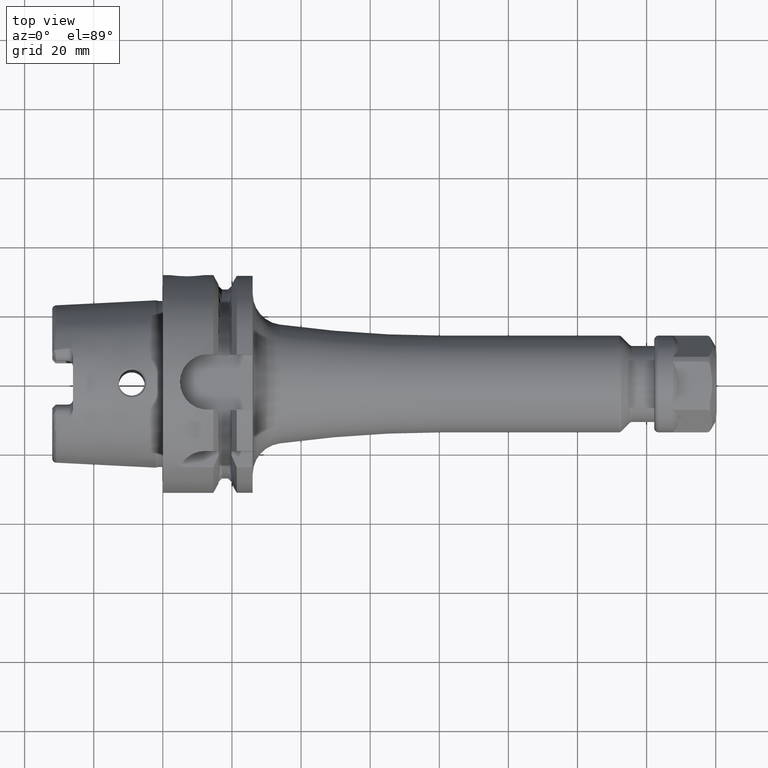
[diagram: clean part render]
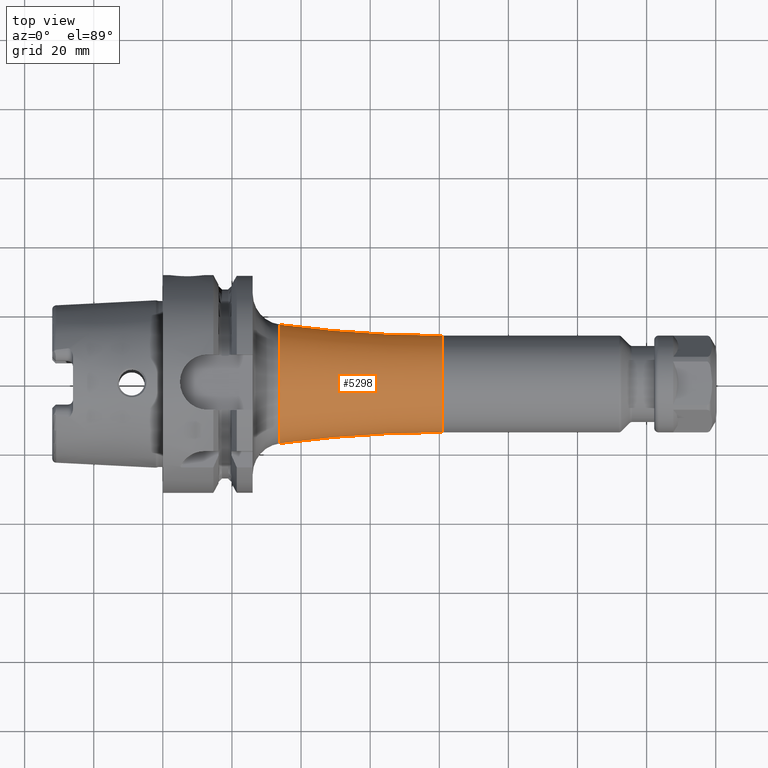
[diagram: same view with one face highlighted and labeled with its STEP entity id]
A machine part, top view. The second image highlights one B-rep face of the part: STEP entity #5298.
In plain terms, the highlighted toroidal blend (fillet) surface has major radius 364 mm and minor (blend) radius 350 mm.
Its self-contained STEP definition (entity closure, byte-faithful):
#1966=CARTESIAN_POINT('',(3.378592375367E1,0.E0,0.E0));
#1967=DIRECTION('',(1.E0,0.E0,0.E0));
#1968=DIRECTION('',(0.E0,1.E0,0.E0));
#1969=AXIS2_PLACEMENT_3D('',#1966,#1967,#1968);
#1976=CARTESIAN_POINT('',(8.1E1,-3.64E2,-8.915428697793E-14));
#1977=DIRECTION('',(0.E0,0.E0,1.E0));
#1978=DIRECTION('',(0.E0,1.E0,0.E0));
#1979=AXIS2_PLACEMENT_3D('',#1976,#1977,#1978);
#1981=CARTESIAN_POINT('',(8.1E1,3.64E2,4.457714348896E-14));
#1982=DIRECTION('',(0.E0,0.E0,-1.E0));
#1983=DIRECTION('',(0.E0,-1.E0,0.E0));
#1984=AXIS2_PLACEMENT_3D('',#1981,#1982,#1983);
#2004=CARTESIAN_POINT('',(8.1E1,0.E0,0.E0));
#2005=DIRECTION('',(1.E0,0.E0,0.E0));
#2006=DIRECTION('',(0.E0,1.E0,0.E0));
#2007=AXIS2_PLACEMENT_3D('',#2004,#2005,#2006);
#3164=CARTESIAN_POINT('',(8.1E1,1.4E1,0.E0));
#3165=CARTESIAN_POINT('',(8.1E1,-1.4E1,0.E0));
#3166=VERTEX_POINT('',#3164);
#3167=VERTEX_POINT('',#3165);
#3172=CARTESIAN_POINT('',(3.378592375367E1,-1.719914791886E1,0.E0));
#3173=CARTESIAN_POINT('',(3.378592375367E1,1.719914791886E1,0.E0));
#3174=VERTEX_POINT('',#3172);
#3175=VERTEX_POINT('',#3173);
#5284=CARTESIAN_POINT('',(8.1E1,0.E0,0.E0));
#5285=DIRECTION('',(1.E0,0.E0,0.E0));
#5286=DIRECTION('',(0.E0,-1.E0,0.E0));
#5287=AXIS2_PLACEMENT_3D('',#5284,#5285,#5286);
#5288=TOROIDAL_SURFACE('',#5287,3.64E2,3.5E2);
#5289=ORIENTED_EDGE('',*,*,#5278,.F.);
#5291=ORIENTED_EDGE('',*,*,#5290,.F.);
#5293=ORIENTED_EDGE('',*,*,#5292,.T.);
#5295=ORIENTED_EDGE('',*,*,#5294,.T.);
#5296=EDGE_LOOP('',(#5289,#5291,#5293,#5295));
#5297=FACE_OUTER_BOUND('',#5296,.F.);
#5298=ADVANCED_FACE('',(#5297),#5288,.F.);
#1970=CIRCLE('',#1969,1.719914791886E1);
#1980=CIRCLE('',#1979,3.5E2);
#1985=CIRCLE('',#1984,3.5E2);
#2008=CIRCLE('',#2007,1.4E1);
#5278=EDGE_CURVE('',#3175,#3174,#1970,.T.);
#5290=EDGE_CURVE('',#3166,#3175,#1985,.T.);
#5292=EDGE_CURVE('',#3166,#3167,#2008,.T.);
#5294=EDGE_CURVE('',#3167,#3174,#1980,.T.);